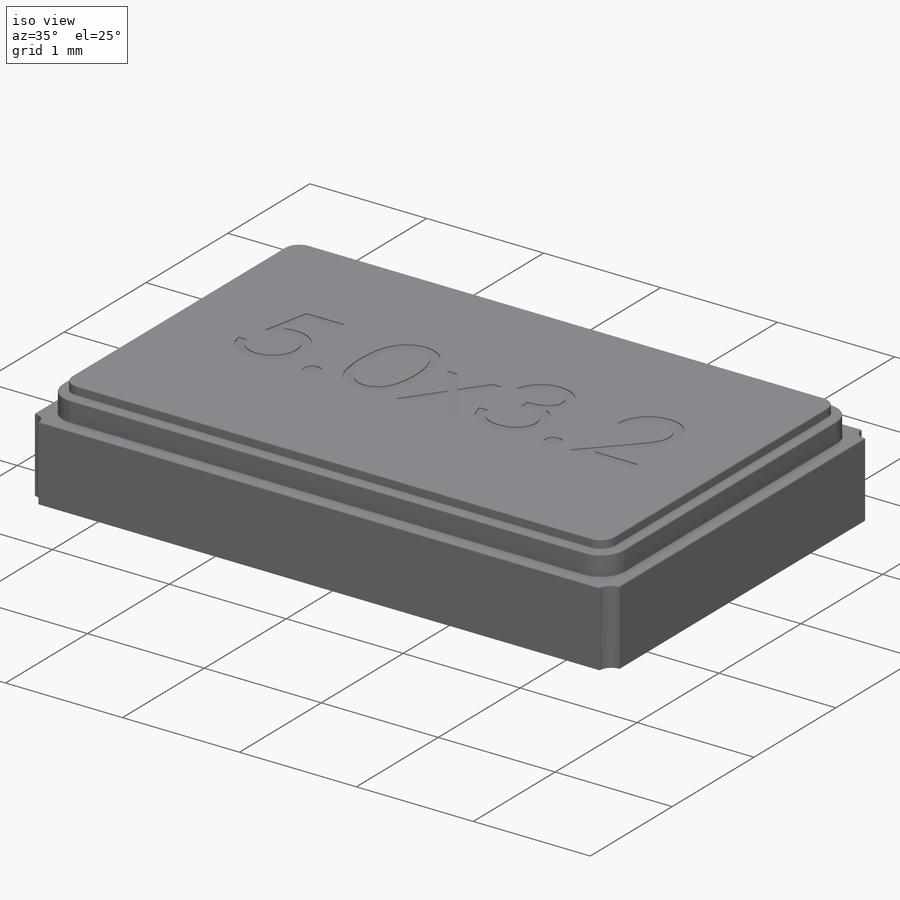
[diagram: iso view]
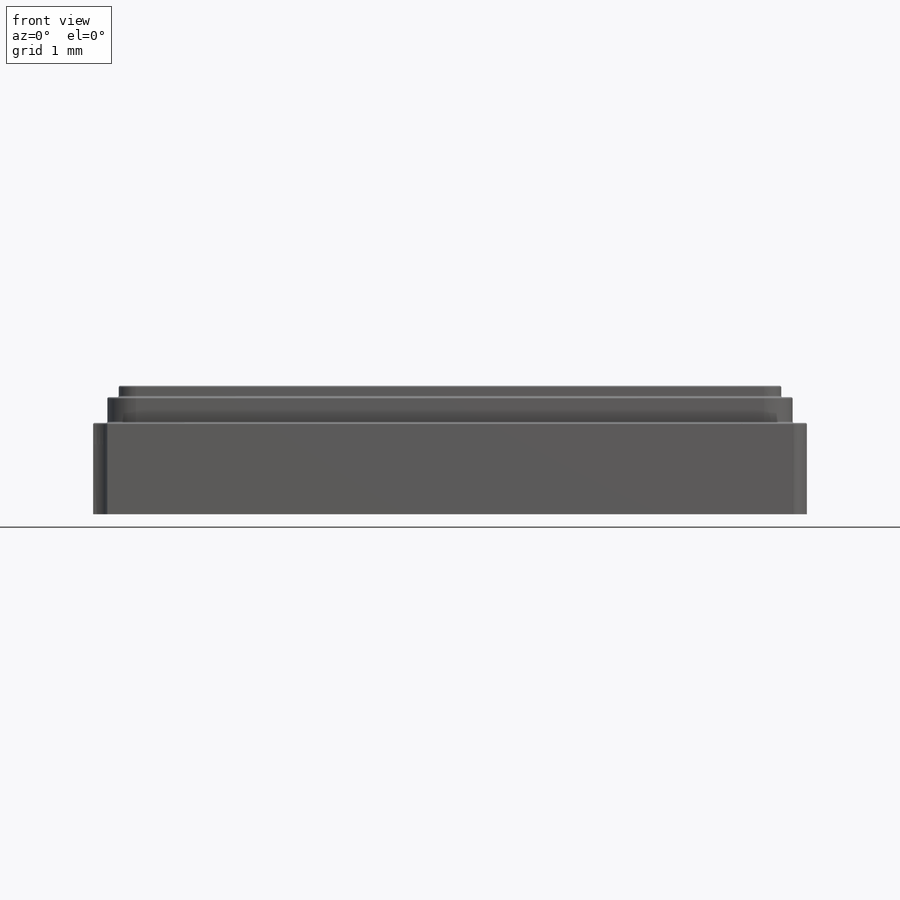
[diagram: front view]
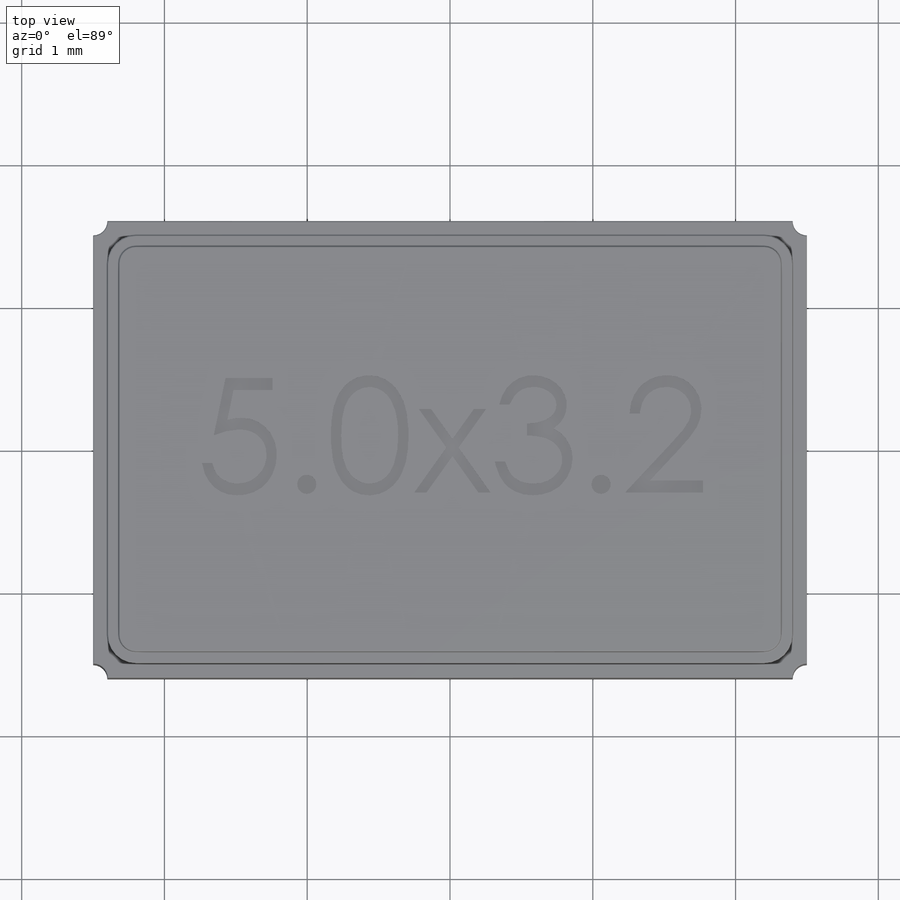
[diagram: top view]
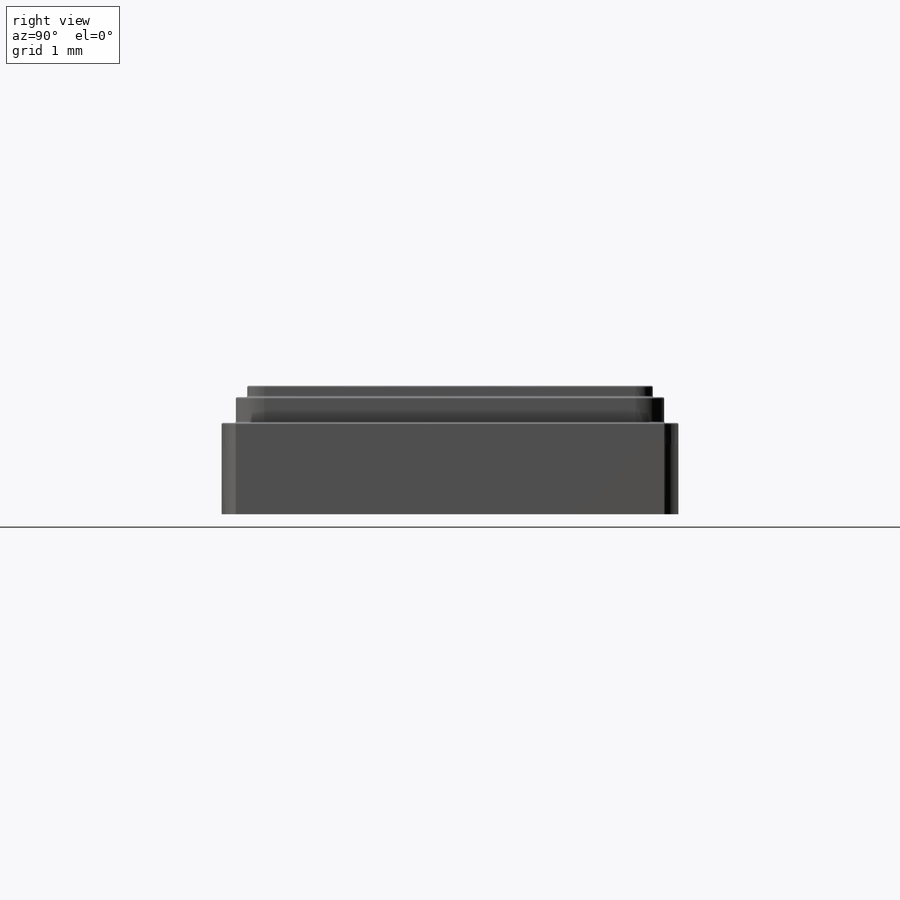
[diagram: right view]
SOLIDWORKS PART (.sldprt)
format: sldprt  version: not decoded by parser v0  size: 689,152 bytes
history: native  units: mm
features: sketch x7, extrude x3, material x1, fillet x1, cut_extrude x1 (+12 scaffold rows collapsed)
feature tree (25):
  scaffold x12  (default folders/planes/origin — collapsed)
  material  "Material <not specified>"
  sketch  "Sketch1"  dims[c1.D3=0.2mm c1.D1=5.0mm c1.D2=3.2mm c1.D4=2.3mm c1.D5=3.0mm c2.D4=3.0mm c2.D5=4.8mm]
  extrude  "Boss-Extrude1"  Depth=0.64mm
  sketch  "Sketch2"  dims[D3=0.2mm D1=0.1mm D2=0.1mm]
  extrude  "Boss-Extrude2"  Depth=0.18mm
  sketch  "Sketch4"  dims[D1=0.08mm]
  extrude  "Boss-Extrude3"  Depth=0.08mm
  sketch  "Sketch5"  dims[c1.D7=0.2mm c1.D1=1.3mm c1.D2=~1.333343mm c2.D2=90.0deg c3.D2=0.7mm c3.D3=~0.29932mm c4.D3=45.0deg c4.D4=0.3mm c4.D5=0.07mm c4.D6=0.07mm c4.D7=0.07mm]
  sketch  "Sketch6"  dims[D1=0.15mm]
  sketch  "Sketch7"  dims[D1=0.15mm]
  fillet  "Fillet1"  Radius=0.01mm
  sketch  "Sketch8"
  cut_extrude  "Cut-Extrude1"  Depth=0.01mm
decode coverage: 11 of 12 modeling features carry decoded parameters
note: ~ marks probable driven/reference dimensions
note: suppression state not decoded; provenance and decode notes live in map.json
